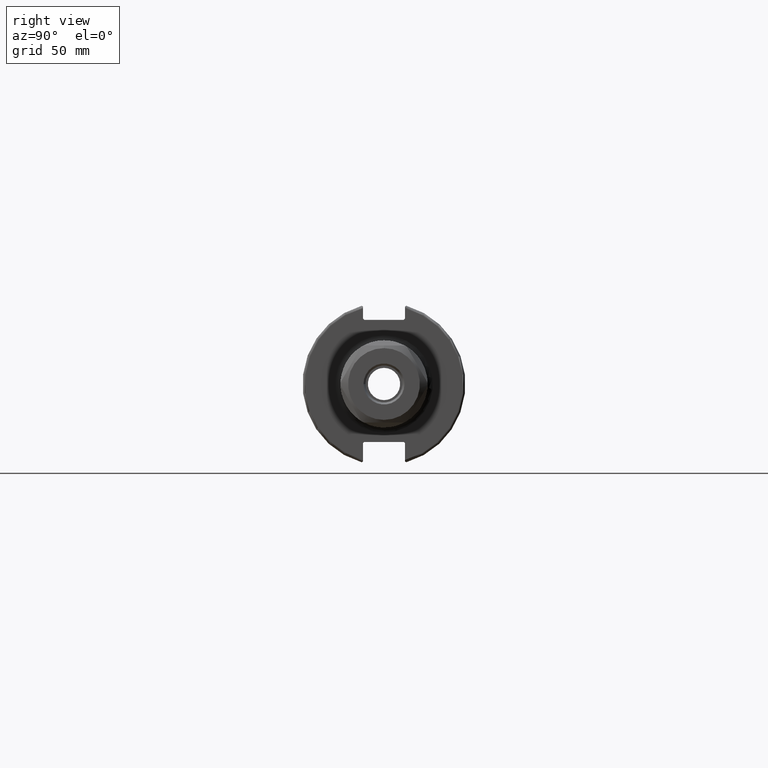
[diagram: clean part render]
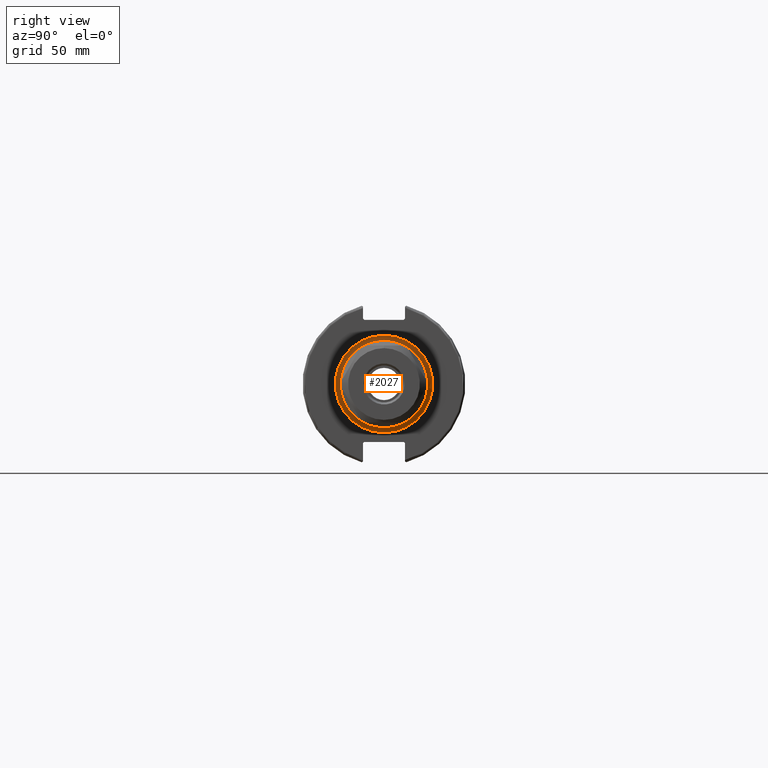
[diagram: same view with one face highlighted and labeled with its STEP entity id]
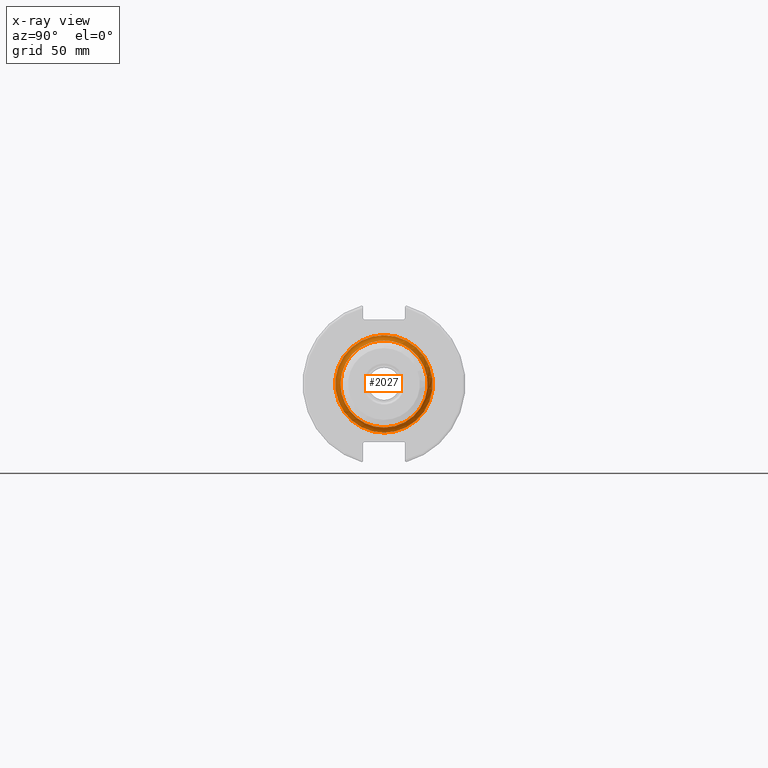
[diagram: x-ray of the same camera — body ghosted, the highlighted face saturated]
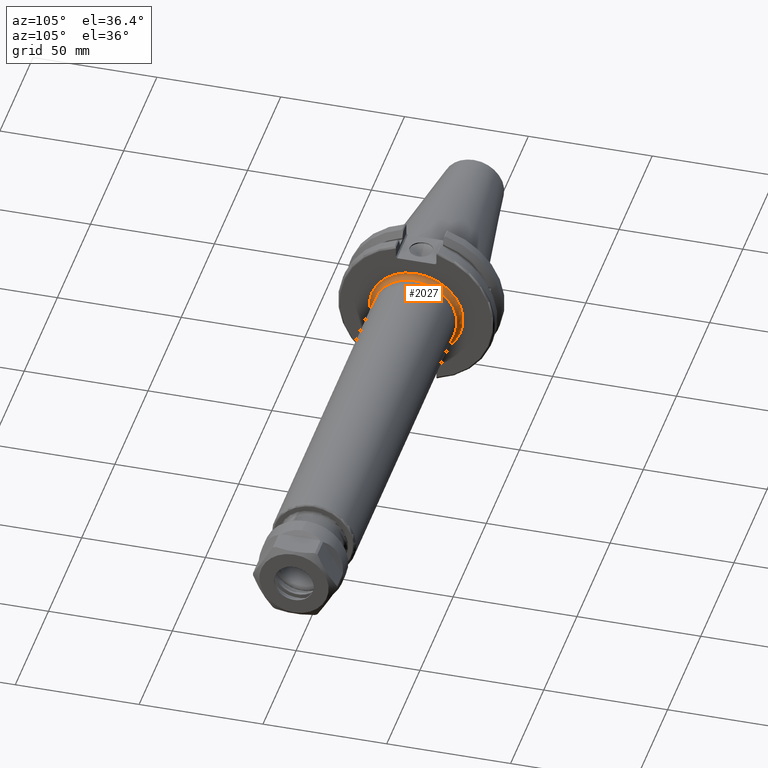
[diagram: same view with one face highlighted and labeled with its STEP entity id]
A machine part, right view. The second image highlights one B-rep face of the part: STEP entity #2027.
The next image is the same camera in x-ray: the body ghosted, the highlighted face saturated — about 3% of this face is hidden behind the body in this view.
A second angle (auxiliary view) of the same face is appended — the face is thin or edge-on in the first view.
In plain terms, the highlighted toroidal blend (fillet) surface has major radius 19 mm and minor (blend) radius 2 mm.
Its self-contained STEP definition (entity closure, byte-faithful):
#112=TOROIDAL_SURFACE('',#2244,19.,2.);
#276=FACE_OUTER_BOUND('',#399,.T.);
#399=EDGE_LOOP('',(#1445,#1446,#1447,#1448,#1449));
#790=CIRCLE('',#2242,17.);
#791=CIRCLE('',#2243,17.);
#792=CIRCLE('',#2245,2.);
#793=CIRCLE('',#2246,19.);
#898=VERTEX_POINT('',#3232);
#899=VERTEX_POINT('',#3234);
#900=VERTEX_POINT('',#3238);
#1111=EDGE_CURVE('',#899,#898,#790,.T.);
#1112=EDGE_CURVE('',#898,#899,#791,.T.);
#1113=EDGE_CURVE('',#899,#900,#792,.T.);
#1114=EDGE_CURVE('',#900,#900,#793,.T.);
#1445=ORIENTED_EDGE('',*,*,#1112,.T.);
#1446=ORIENTED_EDGE('',*,*,#1113,.T.);
#1447=ORIENTED_EDGE('',*,*,#1114,.T.);
#1448=ORIENTED_EDGE('',*,*,#1113,.F.);
#1449=ORIENTED_EDGE('',*,*,#1111,.T.);
#2027=ADVANCED_FACE('',(#276),#112,.F.);
#2242=AXIS2_PLACEMENT_3D('',#3235,#2540,#2541);
#2243=AXIS2_PLACEMENT_3D('',#3236,#2542,#2543);
#2244=AXIS2_PLACEMENT_3D('',#3237,#2544,#2545);
#2245=AXIS2_PLACEMENT_3D('',#3239,#2546,#2547);
#2246=AXIS2_PLACEMENT_3D('',#3240,#2548,#2549);
#2540=DIRECTION('center_axis',(-1.,0.,0.));
#2541=DIRECTION('ref_axis',(0.,-1.,-1.22464679914735E-16));
#2542=DIRECTION('center_axis',(-1.,0.,0.));
#2543=DIRECTION('ref_axis',(0.,-1.,-1.22464679914735E-16));
#2544=DIRECTION('center_axis',(-1.,0.,0.));
#2545=DIRECTION('ref_axis',(0.,0.,1.));
#2546=DIRECTION('center_axis',(0.,-1.,1.22464679914735E-16));
#2547=DIRECTION('ref_axis',(0.,-1.22464679914735E-16,-1.));
#2548=DIRECTION('center_axis',(1.,0.,0.));
#2549=DIRECTION('ref_axis',(0.,-1.,-1.22464679914735E-16));
#3232=CARTESIAN_POINT('',(21.05,-17.,-2.0818995585505E-15));
#3234=CARTESIAN_POINT('',(21.05,-2.0818995585505E-15,-17.));
#3235=CARTESIAN_POINT('Origin',(21.05,0.,0.));
#3236=CARTESIAN_POINT('Origin',(21.05,0.,0.));
#3237=CARTESIAN_POINT('Origin',(21.05,0.,0.));
#3238=CARTESIAN_POINT('',(19.05,-2.32682891837997E-15,-19.));
#3239=CARTESIAN_POINT('Origin',(21.05,-2.32682891837997E-15,-19.));
#3240=CARTESIAN_POINT('Origin',(19.05,0.,0.));